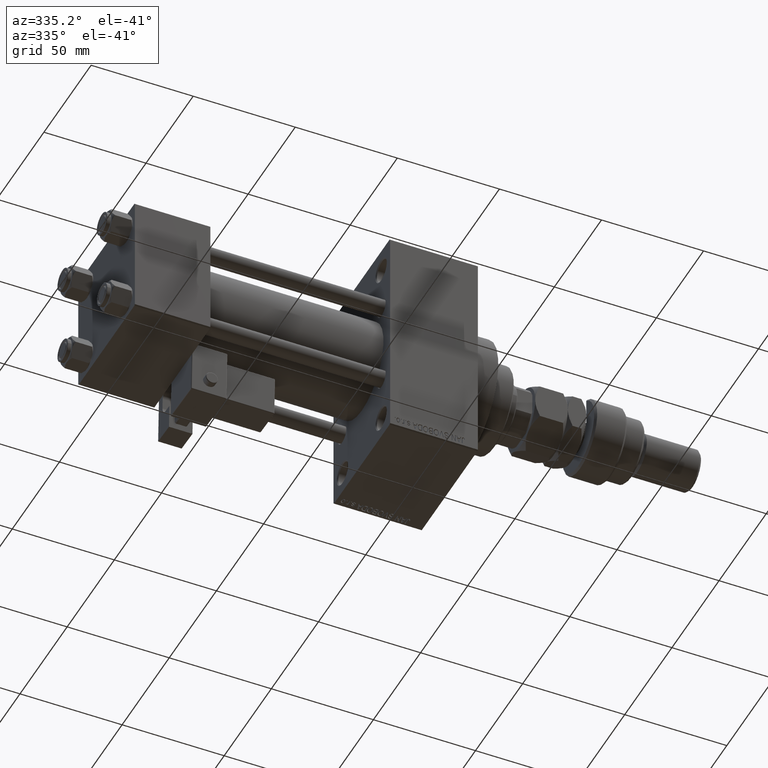
[diagram: clean part render]
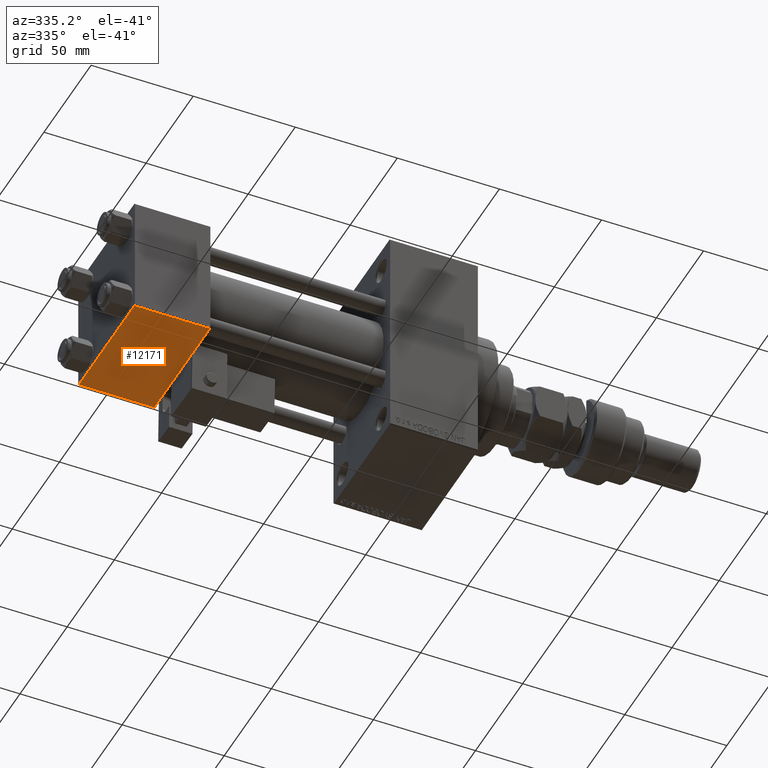
[diagram: same view with one face highlighted and labeled with its STEP entity id]
A machine part, auxiliary view. The second image highlights one B-rep face of the part: STEP entity #12171.
In plain terms, the highlighted planar face has unit normal (0, 0, -1).
Its self-contained STEP definition (entity closure, byte-faithful):
#2434 = VERTEX_POINT ( 'NONE', #50656 ) ;
#2657 = VECTOR ( 'NONE', #5941, 1000.000000000000000 ) ;
#3035 = CARTESIAN_POINT ( 'NONE',  ( 0.000000000000000000, -29.50000000000000000, -30.00000000000000711 ) ) ;
#4520 = CARTESIAN_POINT ( 'NONE',  ( 37.00000000000000000, 29.49999999999997868, -30.00000000000000000 ) ) ;
#5941 = DIRECTION ( 'NONE',  ( 0.000000000000000000, -1.000000000000000000, -1.156482317317871725E-16 ) ) ;
#7423 = FACE_OUTER_BOUND ( 'NONE', #32529, .T. ) ;
#7967 = DIRECTION ( 'NONE',  ( 0.000000000000000000, 1.156482317317871725E-16, -1.000000000000000000 ) ) ;
#10917 = CARTESIAN_POINT ( 'NONE',  ( 0.000000000000000000, 29.99999999999999289, -30.00000000000000000 ) ) ;
#12171 = ADVANCED_FACE ( 'NONE', ( #7423 ), #49383, .T. ) ;
#13406 = VECTOR ( 'NONE', #51391, 1000.000000000000000 ) ;
#14388 = LINE ( 'NONE', #38945, #13406 ) ;
#16111 = ORIENTED_EDGE ( 'NONE', *, *, #46081, .T. ) ;
#17591 = VERTEX_POINT ( 'NONE', #42117 ) ;
#18200 = AXIS2_PLACEMENT_3D ( 'NONE', #37485, #7967, #46321 ) ;
#19687 = CARTESIAN_POINT ( 'NONE',  ( 37.00000000000000000, -29.50000000000000000, -30.00000000000000711 ) ) ;
#21460 = EDGE_CURVE ( 'NONE', #17591, #29198, #48739, .T. ) ;
#24987 = LINE ( 'NONE', #54517, #41559 ) ;
#26415 = ORIENTED_EDGE ( 'NONE', *, *, #21460, .F. ) ;
#27071 = EDGE_CURVE ( 'NONE', #2434, #52981, #14388, .T. ) ;
#29198 = VERTEX_POINT ( 'NONE', #3035 ) ;
#29643 = LINE ( 'NONE', #4520, #46728 ) ;
#32529 = EDGE_LOOP ( 'NONE', ( #26415, #16111, #43141, #53442 ) ) ;
#37485 = CARTESIAN_POINT ( 'NONE',  ( 37.00000000000000000, 29.99999999999999289, -30.00000000000000000 ) ) ;
#37928 = DIRECTION ( 'NONE',  ( -1.000000000000000000, 0.000000000000000000, 0.000000000000000000 ) ) ;
#38945 = CARTESIAN_POINT ( 'NONE',  ( 37.00000000000000000, 29.99999999999999289, -30.00000000000000000 ) ) ;
#41559 = VECTOR ( 'NONE', #37928, 1000.000000000000000 ) ;
#42117 = CARTESIAN_POINT ( 'NONE',  ( 0.000000000000000000, 29.49999999999997868, -30.00000000000000000 ) ) ;
#42591 = DIRECTION ( 'NONE',  ( 1.000000000000000000, 0.000000000000000000, 0.000000000000000000 ) ) ;
#43141 = ORIENTED_EDGE ( 'NONE', *, *, #27071, .T. ) ;
#46081 = EDGE_CURVE ( 'NONE', #17591, #2434, #29643, .T. ) ;
#46321 = DIRECTION ( 'NONE',  ( 0.000000000000000000, 1.000000000000000000, 1.156482317317871725E-16 ) ) ;
#46728 = VECTOR ( 'NONE', #42591, 1000.000000000000000 ) ;
#48299 = EDGE_CURVE ( 'NONE', #52981, #29198, #24987, .T. ) ;
#48739 = LINE ( 'NONE', #10917, #2657 ) ;
#49383 = PLANE ( 'NONE',  #18200 ) ;
#50656 = CARTESIAN_POINT ( 'NONE',  ( 37.00000000000000000, 29.49999999999997868, -30.00000000000000000 ) ) ;
#51391 = DIRECTION ( 'NONE',  ( 0.000000000000000000, -1.000000000000000000, -1.156482317317871725E-16 ) ) ;
#52981 = VERTEX_POINT ( 'NONE', #19687 ) ;
#53442 = ORIENTED_EDGE ( 'NONE', *, *, #48299, .T. ) ;
#54517 = CARTESIAN_POINT ( 'NONE',  ( 0.000000000000000000, -29.50000000000001066, -30.00000000000000711 ) ) ;